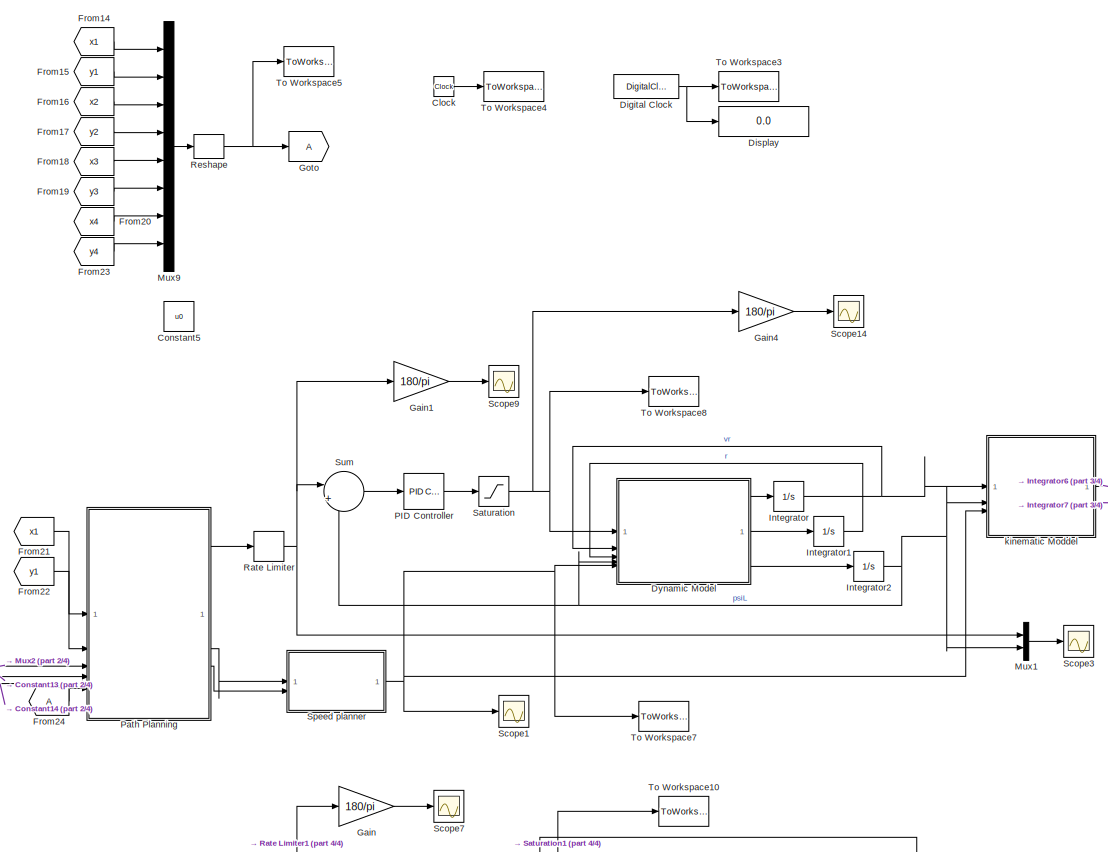
[diagram: root canvas - part 1/4, top center region]
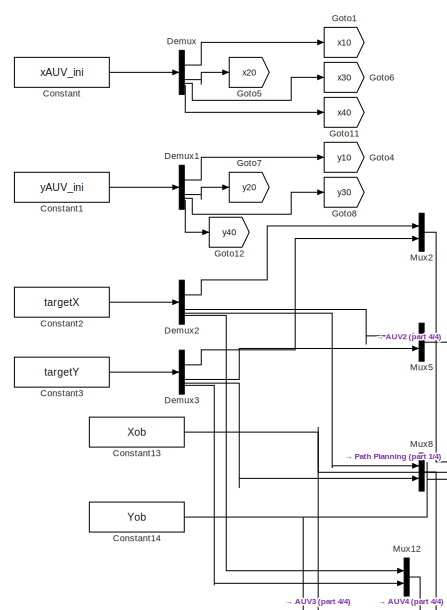
[diagram: root canvas - part 2/4, top left region]
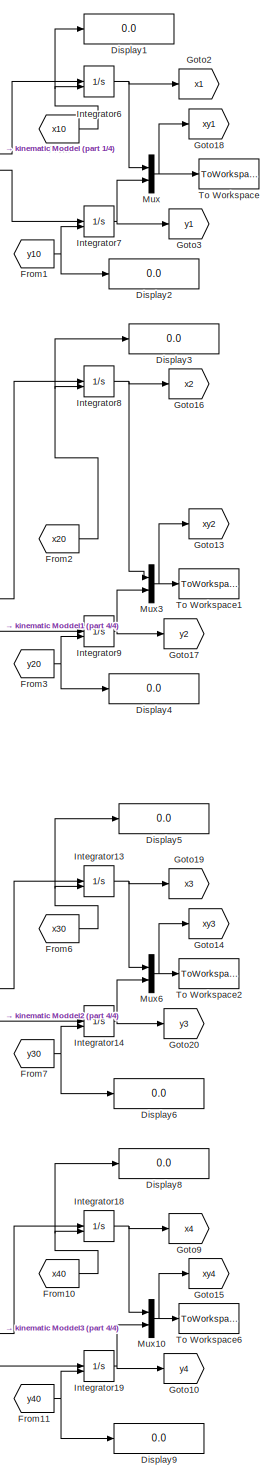
[diagram: root canvas - part 3/4, right side, full height]
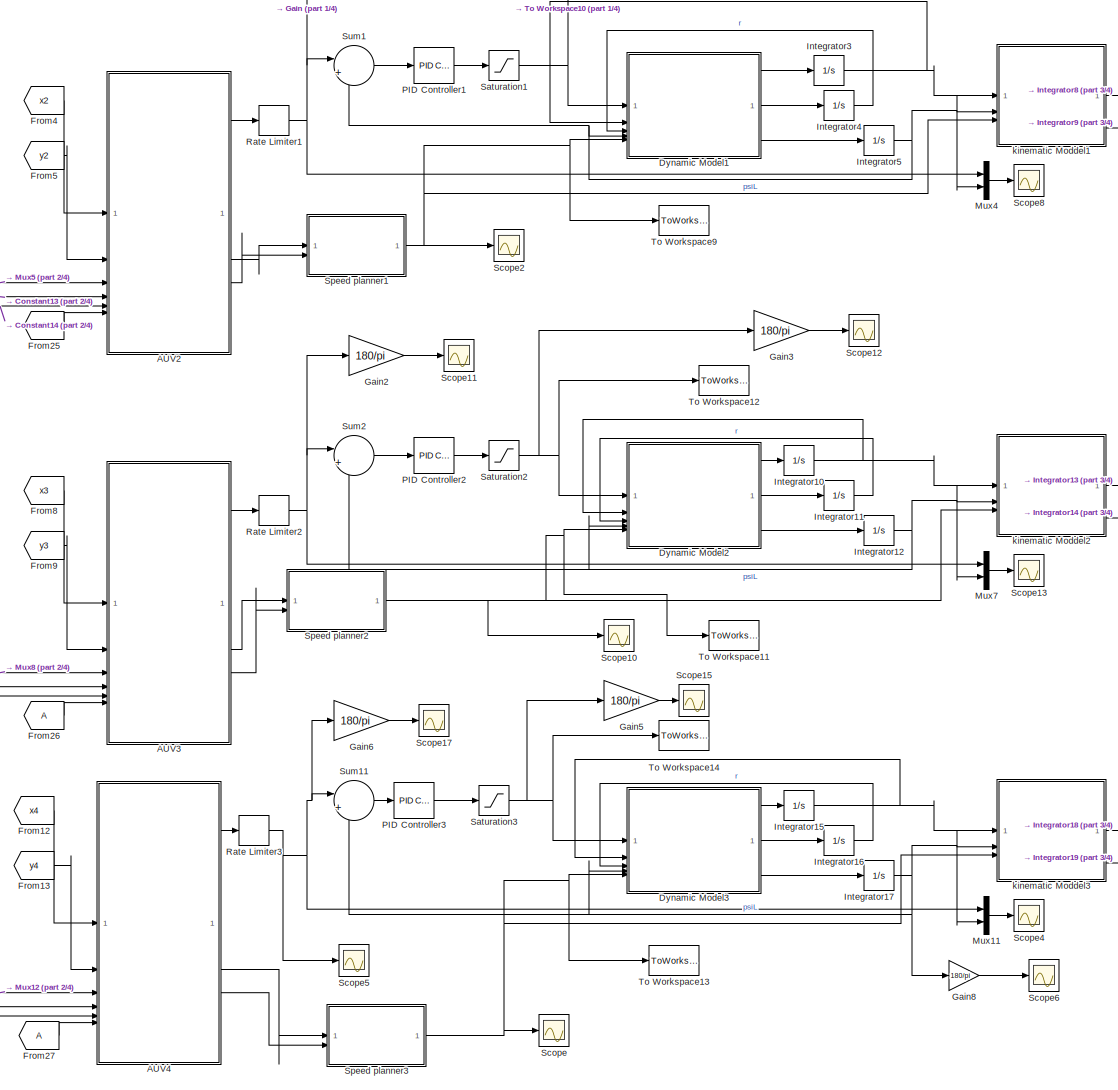
[diagram: root canvas - part 4/4, bottom center region]
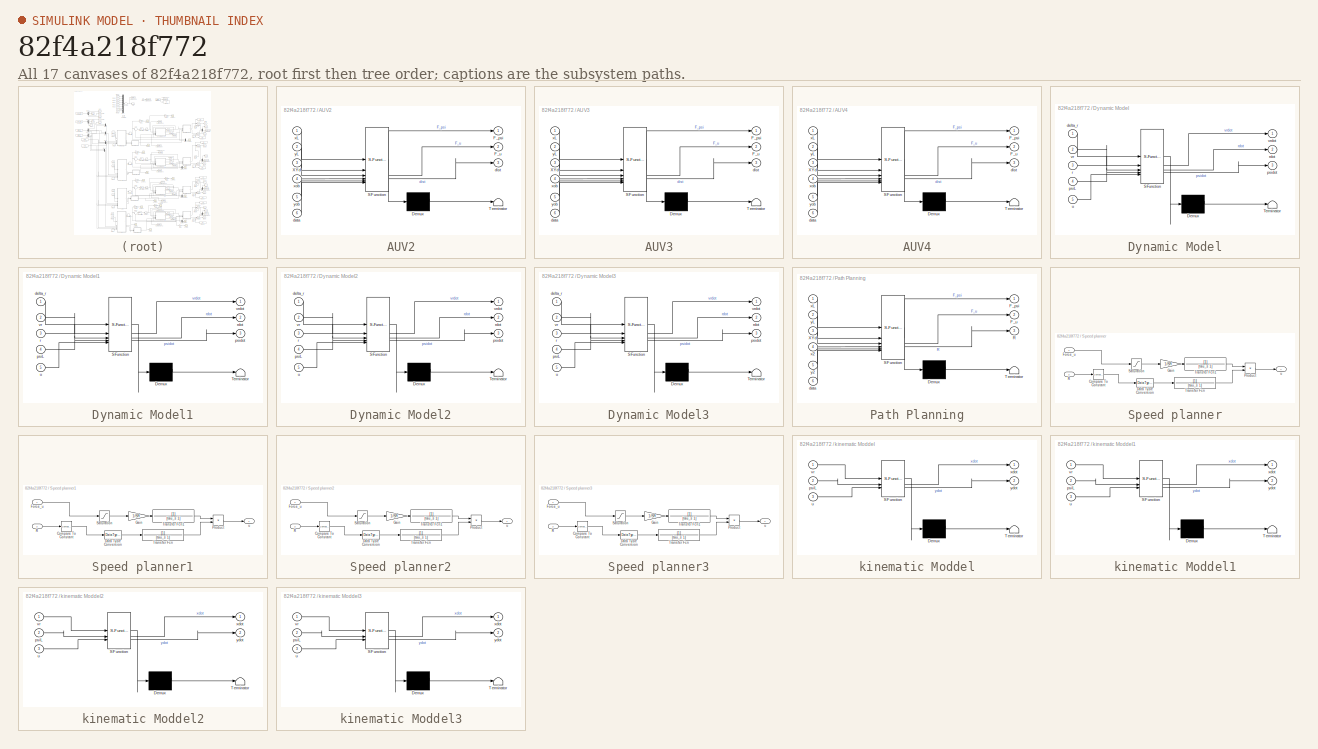
[diagram: thumbnail index - all 17 canvases of the model, root first then tree order]
MODEL slx_82f4a218f772
KIND model
CONFIG AbsTol = auto
CONFIG EnableMultiTasking = off
CONFIG FixedStep = dt
CONFIG MaxStep = auto
CONFIG MinStep = auto
CONFIG RelTol = 1e-3
CONFIG SampleTimeConstraint = Unconstrained
CONFIG SolverName = FixedStepAuto
CONFIG StartTime = 0.0
CONFIG StopTime = Sim_time
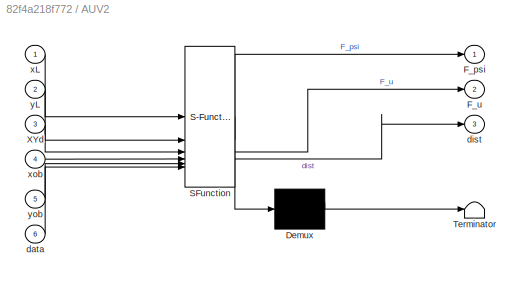
BLOCK [SubSystem] AUV2
  ErrorFcn = Stateflow.Translate.translate
  PermitHierarchicalResolution = ExplicitOnly
  SFBlockType = MATLAB Function
  TreatAsAtomicUnit = on
BLOCK [Demux] AUV2/ Demux 
  Outputs = 1
BLOCK [S-Function] AUV2/ SFunction 
  EnableBusSupport = on
  FunctionName = sf_sfun
  PortCounts = [6 4]
  SFcnIsStateOwnerBlock = off
  SFunctionDeploymentMode = off
  Tag = Stateflow S-Function 3
BLOCK [Terminator] AUV2/ Terminator 
BLOCK [Outport] AUV2/F_psi
  VectorParamsAs1DForOutWhenUnconnected = off
BLOCK [Outport] AUV2/F_u
  Port = 2
BLOCK [Inport] AUV2/XYd
  Port = 3
BLOCK [Inport] AUV2/data
  Port = 6
BLOCK [Outport] AUV2/dist
  Port = 3
BLOCK [Inport] AUV2/xL
BLOCK [Inport] AUV2/xob
  Port = 4
BLOCK [Inport] AUV2/yL
  Port = 2
BLOCK [Inport] AUV2/yob
  Port = 5
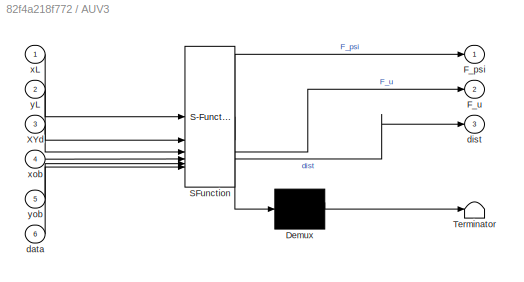
BLOCK [SubSystem] AUV3
  ErrorFcn = Stateflow.Translate.translate
  PermitHierarchicalResolution = ExplicitOnly
  SFBlockType = MATLAB Function
  TreatAsAtomicUnit = on
BLOCK [Demux] AUV3/ Demux 
  Outputs = 1
BLOCK [S-Function] AUV3/ SFunction 
  EnableBusSupport = on
  FunctionName = sf_sfun
  PortCounts = [6 4]
  SFcnIsStateOwnerBlock = off
  SFunctionDeploymentMode = off
  Tag = Stateflow S-Function 5
BLOCK [Terminator] AUV3/ Terminator 
BLOCK [Outport] AUV3/F_psi
  VectorParamsAs1DForOutWhenUnconnected = off
BLOCK [Outport] AUV3/F_u
  Port = 2
BLOCK [Inport] AUV3/XYd
  Port = 3
BLOCK [Inport] AUV3/data
  Port = 6
BLOCK [Outport] AUV3/dist
  Port = 3
BLOCK [Inport] AUV3/xL
BLOCK [Inport] AUV3/xob
  Port = 4
BLOCK [Inport] AUV3/yL
  Port = 2
BLOCK [Inport] AUV3/yob
  Port = 5
BLOCK [SubSystem] AUV4
  ErrorFcn = Stateflow.Translate.translate
  PermitHierarchicalResolution = ExplicitOnly
  SFBlockType = MATLAB Function
  TreatAsAtomicUnit = on
BLOCK [Demux] AUV4/ Demux 
  Outputs = 1
BLOCK [S-Function] AUV4/ SFunction 
  EnableBusSupport = on
  FunctionName = sf_sfun
  PortCounts = [6 4]
  SFcnIsStateOwnerBlock = off
  SFunctionDeploymentMode = off
  Tag = Stateflow S-Function 8
BLOCK [Terminator] AUV4/ Terminator 
BLOCK [Outport] AUV4/F_psi
  VectorParamsAs1DForOutWhenUnconnected = off
BLOCK [Outport] AUV4/F_u
  Port = 2
BLOCK [Inport] AUV4/XYd
  Port = 3
BLOCK [Inport] AUV4/data
  Port = 6
BLOCK [Outport] AUV4/dist
  Port = 3
BLOCK [Inport] AUV4/xL
BLOCK [Inport] AUV4/xob
  Port = 4
BLOCK [Inport] AUV4/yL
  Port = 2
BLOCK [Inport] AUV4/yob
  Port = 5
BLOCK [Clock] Clock
BLOCK [Constant] Constant
  Value = xAUV_ini
BLOCK [Constant] Constant1
  Value = yAUV_ini
BLOCK [Constant] Constant13
  Value = Xob
BLOCK [Constant] Constant14
  Value = Yob
BLOCK [Constant] Constant2
  Value = targetX
BLOCK [Constant] Constant3
  Value = targetY
BLOCK [Constant] Constant5
  Value = u0
BLOCK [Demux] Demux
BLOCK [Demux] Demux1
BLOCK [Demux] Demux2
BLOCK [Demux] Demux3
BLOCK [DigitalClock] Digital Clock
BLOCK [Display] Display
  Decimation = 1
BLOCK [Display] Display1
  Decimation = 1
BLOCK [Display] Display2
  Decimation = 1
BLOCK [Display] Display3
  Decimation = 1
BLOCK [Display] Display4
  Decimation = 1
BLOCK [Display] Display5
  Decimation = 1
BLOCK [Display] Display6
  Decimation = 1
BLOCK [Display] Display8
  Decimation = 1
BLOCK [Display] Display9
  Decimation = 1
BLOCK [SubSystem] Dynamic Model
  ErrorFcn = Stateflow.Translate.translate
  PermitHierarchicalResolution = ExplicitOnly
  SFBlockType = MATLAB Function
  TreatAsAtomicUnit = on
BLOCK [Demux] Dynamic Model/ Demux 
  Outputs = 1
BLOCK [S-Function] Dynamic Model/ SFunction 
  EnableBusSupport = on
  FunctionName = sf_sfun
  PortCounts = [5 4]
  SFcnIsStateOwnerBlock = off
  SFunctionDeploymentMode = off
  Tag = Stateflow S-Function 2
BLOCK [Terminator] Dynamic Model/ Terminator 
BLOCK [Inport] Dynamic Model/delta_r
BLOCK [Inport] Dynamic Model/psiL
  Port = 4
BLOCK [Outport] Dynamic Model/psidot
  Port = 3
  VectorParamsAs1DForOutWhenUnconnected = off
BLOCK [Inport] Dynamic Model/r
  Port = 3
BLOCK [Outport] Dynamic Model/rdot
  Port = 2
  VectorParamsAs1DForOutWhenUnconnected = off
BLOCK [Inport] Dynamic Model/u
  Port = 5
BLOCK [Inport] Dynamic Model/vr
  Port = 2
BLOCK [Outport] Dynamic Model/vrdot
  VectorParamsAs1DForOutWhenUnconnected = off
BLOCK [SubSystem] Dynamic Model1
  ErrorFcn = Stateflow.Translate.translate
  PermitHierarchicalResolution = ExplicitOnly
  SFBlockType = MATLAB Function
  TreatAsAtomicUnit = on
BLOCK [Demux] Dynamic Model1/ Demux 
  Outputs = 1
BLOCK [S-Function] Dynamic Model1/ SFunction 
  EnableBusSupport = on
  FunctionName = sf_sfun
  PortCounts = [5 4]
  SFcnIsStateOwnerBlock = off
  SFunctionDeploymentMode = off
  Tag = Stateflow S-Function 4
BLOCK [Terminator] Dynamic Model1/ Terminator 
BLOCK [Inport] Dynamic Model1/delta_r
BLOCK [Inport] Dynamic Model1/psiL
  Port = 4
BLOCK [Outport] Dynamic Model1/psidot
  Port = 3
  VectorParamsAs1DForOutWhenUnconnected = off
BLOCK [Inport] Dynamic Model1/r
  Port = 3
BLOCK [Outport] Dynamic Model1/rdot
  Port = 2
  VectorParamsAs1DForOutWhenUnconnected = off
BLOCK [Inport] Dynamic Model1/u
  Port = 5
BLOCK [Inport] Dynamic Model1/vr
  Port = 2
BLOCK [Outport] Dynamic Model1/vrdot
  VectorParamsAs1DForOutWhenUnconnected = off
BLOCK [SubSystem] Dynamic Model2
  ErrorFcn = Stateflow.Translate.translate
  PermitHierarchicalResolution = ExplicitOnly
  SFBlockType = MATLAB Function
  TreatAsAtomicUnit = on
BLOCK [Demux] Dynamic Model2/ Demux 
  Outputs = 1
BLOCK [S-Function] Dynamic Model2/ SFunction 
  EnableBusSupport = on
  FunctionName = sf_sfun
  PortCounts = [5 4]
  SFcnIsStateOwnerBlock = off
  SFunctionDeploymentMode = off
  Tag = Stateflow S-Function 7
BLOCK [Terminator] Dynamic Model2/ Terminator 
BLOCK [Inport] Dynamic Model2/delta_r
BLOCK [Inport] Dynamic Model2/psiL
  Port = 4
BLOCK [Outport] Dynamic Model2/psidot
  Port = 3
  VectorParamsAs1DForOutWhenUnconnected = off
BLOCK [Inport] Dynamic Model2/r
  Port = 3
BLOCK [Outport] Dynamic Model2/rdot
  Port = 2
  VectorParamsAs1DForOutWhenUnconnected = off
BLOCK [Inport] Dynamic Model2/u
  Port = 5
BLOCK [Inport] Dynamic Model2/vr
  Port = 2
BLOCK [Outport] Dynamic Model2/vrdot
  VectorParamsAs1DForOutWhenUnconnected = off
BLOCK [SubSystem] Dynamic Model3
  ErrorFcn = Stateflow.Translate.translate
  PermitHierarchicalResolution = ExplicitOnly
  SFBlockType = MATLAB Function
  TreatAsAtomicUnit = on
BLOCK [Demux] Dynamic Model3/ Demux 
  Outputs = 1
BLOCK [S-Function] Dynamic Model3/ SFunction 
  EnableBusSupport = on
  FunctionName = sf_sfun
  PortCounts = [5 4]
  SFcnIsStateOwnerBlock = off
  SFunctionDeploymentMode = off
  Tag = Stateflow S-Function 12
BLOCK [Terminator] Dynamic Model3/ Terminator 
BLOCK [Inport] Dynamic Model3/delta_r
BLOCK [Inport] Dynamic Model3/psiL
  Port = 4
BLOCK [Outport] Dynamic Model3/psidot
  Port = 3
  VectorParamsAs1DForOutWhenUnconnected = off
BLOCK [Inport] Dynamic Model3/r
  Port = 3
BLOCK [Outport] Dynamic Model3/rdot
  Port = 2
  VectorParamsAs1DForOutWhenUnconnected = off
BLOCK [Inport] Dynamic Model3/u
  Port = 5
BLOCK [Inport] Dynamic Model3/vr
  Port = 2
BLOCK [Outport] Dynamic Model3/vrdot
  VectorParamsAs1DForOutWhenUnconnected = off
BLOCK [From] From
  GotoTag = x10
BLOCK [From] From1
  GotoTag = y10
BLOCK [From] From10
  GotoTag = x40
BLOCK [From] From11
  GotoTag = y40
BLOCK [From] From12
  GotoTag = x4
  TagVisibility = global
BLOCK [From] From13
  GotoTag = y4
  TagVisibility = global
BLOCK [From] From14
  GotoTag = x1
  TagVisibility = global
BLOCK [From] From15
  GotoTag = y1
  TagVisibility = global
BLOCK [From] From16
  GotoTag = x2
  TagVisibility = global
BLOCK [From] From17
  GotoTag = y2
  TagVisibility = global
BLOCK [From] From18
  GotoTag = x3
  TagVisibility = global
BLOCK [From] From19
  GotoTag = y3
  TagVisibility = global
BLOCK [From] From2
  GotoTag = x20
BLOCK [From] From20
  GotoTag = x4
  TagVisibility = global
BLOCK [From] From21
  GotoTag = x1
  TagVisibility = global
BLOCK [From] From22
  GotoTag = y1
  TagVisibility = global
BLOCK [From] From23
  GotoTag = y4
  TagVisibility = global
BLOCK [From] From24
BLOCK [From] From25
BLOCK [From] From26
BLOCK [From] From27
BLOCK [From] From3
  GotoTag = y20
BLOCK [From] From4
  GotoTag = x2
  TagVisibility = global
BLOCK [From] From5
  GotoTag = y2
  TagVisibility = global
BLOCK [From] From6
  GotoTag = x30
BLOCK [From] From7
  GotoTag = y30
BLOCK [From] From8
  GotoTag = x3
  TagVisibility = global
BLOCK [From] From9
  GotoTag = y3
  TagVisibility = global
BLOCK [Gain] Gain
  Gain = 180/pi
BLOCK [Gain] Gain1
  Gain = 180/pi
BLOCK [Gain] Gain2
  Gain = 180/pi
BLOCK [Gain] Gain3
  Gain = 180/pi
BLOCK [Gain] Gain4
  Gain = 180/pi
BLOCK [Gain] Gain5
  Gain = 180/pi
BLOCK [Gain] Gain6
  Gain = 180/pi
BLOCK [Gain] Gain8
  Gain = 180/pi
BLOCK [Goto] Goto
BLOCK [Goto] Goto1
  GotoTag = x10
BLOCK [Goto] Goto10
  GotoTag = y4
  TagVisibility = global
BLOCK [Goto] Goto11
  GotoTag = x40
BLOCK [Goto] Goto12
  GotoTag = y40
BLOCK [Goto] Goto13
  GotoTag = xy2
  TagVisibility = global
BLOCK [Goto] Goto14
  GotoTag = xy3
  TagVisibility = global
BLOCK [Goto] Goto15
  GotoTag = xy4
  TagVisibility = global
BLOCK [Goto] Goto16
  GotoTag = x2
  TagVisibility = global
BLOCK [Goto] Goto17
  GotoTag = y2
  TagVisibility = global
BLOCK [Goto] Goto18
  GotoTag = xy1
  TagVisibility = global
BLOCK [Goto] Goto19
  GotoTag = x3
  TagVisibility = global
BLOCK [Goto] Goto2
  GotoTag = x1
  TagVisibility = global
BLOCK [Goto] Goto20
  GotoTag = y3
  TagVisibility = global
BLOCK [Goto] Goto3
  GotoTag = y1
  TagVisibility = global
BLOCK [Goto] Goto4
  GotoTag = y10
BLOCK [Goto] Goto5
  GotoTag = x20
BLOCK [Goto] Goto6
  GotoTag = x30
BLOCK [Goto] Goto7
  GotoTag = y20
BLOCK [Goto] Goto8
  GotoTag = y30
BLOCK [Goto] Goto9
  GotoTag = x4
  TagVisibility = global
BLOCK [Integrator] Integrator
BLOCK [Integrator] Integrator1
BLOCK [Integrator] Integrator10
BLOCK [Integrator] Integrator11
BLOCK [Integrator] Integrator12
  InitialCondition = pi/6
BLOCK [Integrator] Integrator13
  InitialCondition = 6
  InitialConditionSource = external
BLOCK [Integrator] Integrator14
  InitialCondition = 4
  InitialConditionSource = external
BLOCK [Integrator] Integrator15
BLOCK [Integrator] Integrator16
BLOCK [Integrator] Integrator17
  InitialCondition = pi/6
BLOCK [Integrator] Integrator18
  InitialCondition = 6
  InitialConditionSource = external
BLOCK [Integrator] Integrator19
  InitialCondition = 4
  InitialConditionSource = external
BLOCK [Integrator] Integrator2
  InitialCondition = pi/6
BLOCK [Integrator] Integrator3
BLOCK [Integrator] Integrator4
BLOCK [Integrator] Integrator5
  InitialCondition = pi/6
BLOCK [Integrator] Integrator6
  InitialCondition = 6
  InitialConditionSource = external
BLOCK [Integrator] Integrator7
  InitialCondition = 4
  InitialConditionSource = external
BLOCK [Integrator] Integrator8
  InitialCondition = 6
  InitialConditionSource = external
BLOCK [Integrator] Integrator9
  InitialCondition = 4
  InitialConditionSource = external
BLOCK [Mux] Mux
  DisplayOption = bar
  Inputs = 2
BLOCK [Mux] Mux1
  DisplayOption = bar
  Inputs = 2
BLOCK [Mux] Mux10
  DisplayOption = bar
  Inputs = 2
BLOCK [Mux] Mux11
  DisplayOption = bar
  Inputs = 2
BLOCK [Mux] Mux12
  DisplayOption = bar
  Inputs = 2
BLOCK [Mux] Mux2
  DisplayOption = bar
  Inputs = 2
BLOCK [Mux] Mux3
  DisplayOption = bar
  Inputs = 2
BLOCK [Mux] Mux4
  DisplayOption = bar
  Inputs = 2
BLOCK [Mux] Mux5
  DisplayOption = bar
  Inputs = 2
BLOCK [Mux] Mux6
  DisplayOption = bar
  Inputs = 2
BLOCK [Mux] Mux7
  DisplayOption = bar
  Inputs = 2
BLOCK [Mux] Mux8
  DisplayOption = bar
  Inputs = 2
BLOCK [Mux] Mux9
  DisplayOption = bar
  Inputs = 8
BLOCK [Reference] PID Controller  REF=slpidlib/PID Controller
  SourceBlock = slpidlib/PID Controller
  SourceType = PID 1dof
BLOCK [Reference] PID Controller1  REF=slpidlib/PID Controller
  SourceBlock = slpidlib/PID Controller
  SourceType = PID 1dof
BLOCK [Reference] PID Controller2  REF=slpidlib/PID Controller
  SourceBlock = slpidlib/PID Controller
  SourceType = PID 1dof
BLOCK [Reference] PID Controller3  REF=slpidlib/PID Controller
  SourceBlock = slpidlib/PID Controller
  SourceType = PID 1dof
BLOCK [SubSystem] Path Planning
  ErrorFcn = Stateflow.Translate.translate
  PermitHierarchicalResolution = ExplicitOnly
  SFBlockType = MATLAB Function
  TreatAsAtomicUnit = on
BLOCK [Demux] Path Planning/ Demux 
  Outputs = 1
BLOCK [S-Function] Path Planning/ SFunction 
  EnableBusSupport = on
  FunctionName = sf_sfun
  PortCounts = [6 4]
  SFcnIsStateOwnerBlock = off
  SFunctionDeploymentMode = off
  Tag = Stateflow S-Function 9
BLOCK [Terminator] Path Planning/ Terminator 
BLOCK [Outport] Path Planning/F_psi
  VectorParamsAs1DForOutWhenUnconnected = off
BLOCK [Outport] Path Planning/F_u
  Port = 2
BLOCK [Outport] Path Planning/R
  Port = 3
BLOCK [Inport] Path Planning/XYd
  Port = 3
BLOCK [Inport] Path Planning/data
  Port = 6
BLOCK [Inport] Path Planning/x2
  Port = 4
BLOCK [Inport] Path Planning/xL
BLOCK [Inport] Path Planning/y2
  Port = 5
BLOCK [Inport] Path Planning/yL
  Port = 2
BLOCK [RateLimiter] Rate Limiter
  FallingSlewLimit = -M_psi_r
  RisingSlewLimit = M_psi_r
  SampleTimeMode = inherited
BLOCK [RateLimiter] Rate Limiter1
  FallingSlewLimit = -M_psi_r
  RisingSlewLimit = M_psi_r
  SampleTimeMode = inherited
BLOCK [RateLimiter] Rate Limiter2
  FallingSlewLimit = -M_psi_r
  RisingSlewLimit = M_psi_r
  SampleTimeMode = inherited
BLOCK [RateLimiter] Rate Limiter3
  FallingSlewLimit = -M_psi_r
  RisingSlewLimit = M_psi_r
  SampleTimeMode = inherited
BLOCK [Reshape] Reshape
  OutputDimensionality = Customize
  OutputDimensions = [8,1]
BLOCK [Saturate] Saturation
  LowerLimit = -delta_r_max
  UpperLimit = delta_r_max
BLOCK [Saturate] Saturation1
  LowerLimit = -delta_r_max
  UpperLimit = delta_r_max
BLOCK [Saturate] Saturation2
  LowerLimit = -delta_r_max
  UpperLimit = delta_r_max
BLOCK [Saturate] Saturation3
  LowerLimit = -delta_r_max
  UpperLimit = delta_r_max
BLOCK [Scope] Scope
  Floating = off
  NumInputPorts = 1
  ScopeSpecificationString = Simulink.scopes.TimeScopeBlockCfg('CurrentConfiguration', extmgr.ConfigurationSet(extmgr.Configuration('Core','General UI',true),extmgr.Configuration('Core','Source UI',true),extmgr.Configuration('Sources','WiredSimulink',true,'DataLoggingVariableName','ScopeData1'),extmgr.Configuration('Visuals','Time Domain',true,'SerializedDisplays',{struct('MinYLimReal','-0.1875','MaxYLimReal','1.6875','YLabel...<+1367ch>
BLOCK [Scope] Scope1
  Floating = off
  NumInputPorts = 1
  ScopeSpecificationString = Simulink.scopes.TimeScopeBlockCfg('CurrentConfiguration', extmgr.ConfigurationSet(extmgr.Configuration('Core','General UI',true),extmgr.Configuration('Core','Source UI',true),extmgr.Configuration('Sources','WiredSimulink',true,'DataLoggingVariableName','ScopeData1'),extmgr.Configuration('Visuals','Time Domain',true,'SerializedDisplays',{struct('MinYLimReal','-0.1875','MaxYLimReal','1.5156','YLabel...<+1416ch>
BLOCK [Scope] Scope10
  Floating = off
  NumInputPorts = 1
  ScopeSpecificationString = Simulink.scopes.TimeScopeBlockCfg('CurrentConfiguration', extmgr.ConfigurationSet(extmgr.Configuration('Core','General UI',true),extmgr.Configuration('Core','Source UI',true),extmgr.Configuration('Sources','WiredSimulink',true,'DataLoggingVariableName','ScopeData4'),extmgr.Configuration('Visuals','Time Domain',true,'SerializedDisplays',{struct('MinYLimReal','-0.1875','MaxYLimReal','1.6875','YLabel...<+1400ch>
BLOCK [Scope] Scope11
  Floating = off
  NumInputPorts = 1
  ScopeSpecificationString = Simulink.scopes.TimeScopeBlockCfg('CurrentConfiguration', extmgr.ConfigurationSet(extmgr.Configuration('Core','General UI',true),extmgr.Configuration('Core','Source UI',true),extmgr.Configuration('Sources','WiredSimulink',true,'DataLoggingVariableName','ScopeData5'),extmgr.Configuration('Visuals','Time Domain',true,'SerializedDisplays',{struct('MinYLimReal','-35.1566','MaxYLimReal','170.45912','YL...<+1403ch>
BLOCK [Scope] Scope12
  Floating = off
  NumInputPorts = 1
  ScopeSpecificationString = Simulink.scopes.TimeScopeBlockCfg('CurrentConfiguration', extmgr.ConfigurationSet(extmgr.Configuration('Core','General UI',true),extmgr.Configuration('Core','Source UI',true),extmgr.Configuration('Sources','WiredSimulink',true,'DataLoggingVariableName','ScopeData6'),extmgr.Configuration('Visuals','Time Domain',true,'SerializedDisplays',{struct('MinYLimReal','-65.2852','MaxYLimReal','42.84939','YLa...<+1414ch>
BLOCK [Scope] Scope13
  Floating = off
  NumInputPorts = 1
  ScopeSpecificationString = Simulink.scopes.TimeScopeBlockCfg('CurrentConfiguration', extmgr.ConfigurationSet(extmgr.Configuration('Core','General UI',true),extmgr.Configuration('Core','Source UI',true),extmgr.Configuration('Sources','WiredSimulink',true,'DataLoggingVariableName','ScopeData9'),extmgr.Configuration('Visuals','Time Domain',true,'SerializedDisplays',{struct('MinYLimReal','0.04332','MaxYLimReal','2.34776','YLabe...<+1382ch>
BLOCK [Scope] Scope14
  Floating = off
  NumInputPorts = 1
  ScopeSpecificationString = Simulink.scopes.TimeScopeBlockCfg('CurrentConfiguration', extmgr.ConfigurationSet(extmgr.Configuration('Core','General UI',true),extmgr.Configuration('Core','Source UI',true),extmgr.Configuration('Sources','WiredSimulink',true,'DataLoggingVariableName','ScopeData7'),extmgr.Configuration('Visuals','Time Domain',true,'SerializedDisplays',{struct('MinYLimReal','-37.5','MaxYLimReal','37.5','YLabelReal...<+1394ch>
BLOCK [Scope] Scope15
  Floating = off
  NumInputPorts = 1
  ScopeSpecificationString = Simulink.scopes.TimeScopeBlockCfg('CurrentConfiguration', extmgr.ConfigurationSet(extmgr.Configuration('Core','General UI',true),extmgr.Configuration('Core','Source UI',true),extmgr.Configuration('Sources','WiredSimulink',true,'DataLoggingVariableName','ScopeData8'),extmgr.Configuration('Visuals','Time Domain',true,'SerializedDisplays',{struct('MinYLimReal','-65.2852','MaxYLimReal','42.84939','YLa...<+1414ch>
BLOCK [Scope] Scope17
  Floating = off
  NumInputPorts = 1
  ScopeSpecificationString = Simulink.scopes.TimeScopeBlockCfg('CurrentConfiguration', extmgr.ConfigurationSet(extmgr.Configuration('Core','General UI',true),extmgr.Configuration('Core','Source UI',true),extmgr.Configuration('Sources','WiredSimulink',true,'DataLoggingVariableName','ScopeData10'),extmgr.Configuration('Visuals','Time Domain',true,'SerializedDisplays',{struct('MinYLimReal','-129.56045','MaxYLimReal','144.88955',...<+1427ch>
BLOCK [Scope] Scope2
  Floating = off
  NumInputPorts = 1
  ScopeSpecificationString = Simulink.scopes.TimeScopeBlockCfg('CurrentConfiguration', extmgr.ConfigurationSet(extmgr.Configuration('Core','General UI',true),extmgr.Configuration('Core','Source UI',true),extmgr.Configuration('Sources','WiredSimulink',true,'DataLoggingVariableName','ScopeData1'),extmgr.Configuration('Visuals','Time Domain',true,'SerializedDisplays',{struct('MinYLimReal','-0.1875','MaxYLimReal','1.6875','YLabel...<+1367ch>
BLOCK [Scope] Scope3
  Floating = off
  NumInputPorts = 1
  ScopeSpecificationString = Simulink.scopes.TimeScopeBlockCfg('CurrentConfiguration', extmgr.ConfigurationSet(extmgr.Configuration('Core','General UI',true),extmgr.Configuration('Core','Source UI',true),extmgr.Configuration('Sources','WiredSimulink',true,'DataLoggingVariableName','ScopeData4'),extmgr.Configuration('Visuals','Time Domain',true,'SerializedDisplays',{struct('MinYLimReal','-1.8052','MaxYLimReal','3.98769','YLabe...<+1382ch>
BLOCK [Scope] Scope4
  Floating = off
  NumInputPorts = 1
  ScopeSpecificationString = Simulink.scopes.TimeScopeBlockCfg('CurrentConfiguration', extmgr.ConfigurationSet(extmgr.Configuration('Core','General UI',true),extmgr.Configuration('Core','Source UI',true),extmgr.Configuration('Sources','WiredSimulink',true,'DataLoggingVariableName','ScopeData3'),extmgr.Configuration('Visuals','Time Domain',true,'SerializedDisplays',{struct('MinYLimReal','0.04332','MaxYLimReal','2.34776','YLabe...<+1382ch>
BLOCK [Scope] Scope5
  Floating = off
  NumInputPorts = 1
  ScopeSpecificationString = Simulink.scopes.TimeScopeBlockCfg('CurrentConfiguration', extmgr.ConfigurationSet(extmgr.Configuration('Core','General UI',true),extmgr.Configuration('Core','Source UI',true),extmgr.Configuration('Sources','WiredSimulink',true,'DataLoggingVariableName','ScopeData2'),extmgr.Configuration('Visuals','Time Domain',true,'SerializedDisplays',{struct('MinYLimReal','-1.73624','MaxYLimReal','3.144','YLabel...<+1360ch>
BLOCK [Scope] Scope6
  Floating = off
  NumInputPorts = 1
  ScopeSpecificationString = Simulink.scopes.TimeScopeBlockCfg('CurrentConfiguration', extmgr.ConfigurationSet(extmgr.Configuration('Core','General UI',true),extmgr.Configuration('Core','Source UI',true),extmgr.Configuration('Sources','WiredSimulink',true,'DataLoggingVariableName','ScopeData3'),extmgr.Configuration('Visuals','Time Domain',true,'SerializedDisplays',{struct('MinYLimReal','-114.75405','MaxYLimReal','189.92566','...<+1378ch>
BLOCK [Scope] Scope7
  Floating = off
  NumInputPorts = 1
  ScopeSpecificationString = Simulink.scopes.TimeScopeBlockCfg('CurrentConfiguration', extmgr.ConfigurationSet(extmgr.Configuration('Core','General UI',true),extmgr.Configuration('Core','Source UI',true),extmgr.Configuration('Sources','WiredSimulink',true,'DataLoggingVariableName','ScopeData2'),extmgr.Configuration('Visuals','Time Domain',true,'SerializedDisplays',{struct('MinYLimReal','-22.86135','MaxYLimReal','83.71531','YL...<+1369ch>
BLOCK [Scope] Scope8
  Floating = off
  NumInputPorts = 1
  ScopeSpecificationString = Simulink.scopes.TimeScopeBlockCfg('CurrentConfiguration', extmgr.ConfigurationSet(extmgr.Configuration('Core','General UI',true),extmgr.Configuration('Core','Source UI',true),extmgr.Configuration('Sources','WiredSimulink',true,'DataLoggingVariableName','ScopeData4'),extmgr.Configuration('Visuals','Time Domain',true,'SerializedDisplays',{struct('MinYLimReal','0.04332','MaxYLimReal','2.34776','YLabe...<+1382ch>
BLOCK [Scope] Scope9
  Floating = off
  NumInputPorts = 1
  ScopeSpecificationString = Simulink.scopes.TimeScopeBlockCfg('CurrentConfiguration', extmgr.ConfigurationSet(extmgr.Configuration('Core','General UI',true),extmgr.Configuration('Core','Source UI',true),extmgr.Configuration('Sources','WiredSimulink',true,'DataLoggingVariableName','ScopeData3'),extmgr.Configuration('Visuals','Time Domain',true,'SerializedDisplays',{struct('MinYLimReal','-13.04342','MaxYLimReal','137.35054','Y...<+1422ch>
BLOCK [SubSystem] Speed planner
BLOCK [Reference] Speed planner/Compare To Constant  REF=simulink/Logic and Bit
Operations/Compare
To Constant
  SourceBlock = simulink/Logic and Bit\nOperations/Compare\nTo Constant
  SourceType = Compare To Constant
BLOCK [DataTypeConversion] Speed planner/Data Type Conversion
  OutDataTypeStr = double
  RndMeth = Floor
  SaturateOnIntegerOverflow = off
BLOCK [Inport] Speed planner/Force_u
BLOCK [Gain] Speed planner/Gain
  Gain = 1/SR
BLOCK [Product] Speed planner/Product
BLOCK [Inport] Speed planner/R
  Port = 2
BLOCK [Saturate] Speed planner/Saturation
  LowerLimit = MinF
  UpperLimit = MaxF
BLOCK [TransferFcn] Speed planner/Transfer Fcn
  Denominator = [tau_s 1]
BLOCK [TransferFcn] Speed planner/Transfer Fcn1
  Denominator = [tau_s 1]
BLOCK [Outport] Speed planner/u
BLOCK [SubSystem] Speed planner1
BLOCK [Reference] Speed planner1/Compare To Constant  REF=simulink/Logic and Bit
Operations/Compare
To Constant
  SourceBlock = simulink/Logic and Bit\nOperations/Compare\nTo Constant
  SourceType = Compare To Constant
BLOCK [DataTypeConversion] Speed planner1/Data Type Conversion
  OutDataTypeStr = double
  RndMeth = Floor
  SaturateOnIntegerOverflow = off
BLOCK [Inport] Speed planner1/Force_u
BLOCK [Gain] Speed planner1/Gain
  Gain = 1/SR
BLOCK [Product] Speed planner1/Product
BLOCK [Inport] Speed planner1/R
  Port = 2
BLOCK [Saturate] Speed planner1/Saturation
  LowerLimit = MinF
  UpperLimit = MaxF
BLOCK [TransferFcn] Speed planner1/Transfer Fcn
  Denominator = [tau_s 1]
BLOCK [TransferFcn] Speed planner1/Transfer Fcn1
  Denominator = [tau_s 1]
BLOCK [Outport] Speed planner1/u
BLOCK [SubSystem] Speed planner2
BLOCK [Reference] Speed planner2/Compare To Constant  REF=simulink/Logic and Bit
Operations/Compare
To Constant
  SourceBlock = simulink/Logic and Bit\nOperations/Compare\nTo Constant
  SourceType = Compare To Constant
BLOCK [DataTypeConversion] Speed planner2/Data Type Conversion
  OutDataTypeStr = double
  RndMeth = Floor
  SaturateOnIntegerOverflow = off
BLOCK [Inport] Speed planner2/Force_u
BLOCK [Gain] Speed planner2/Gain
  Gain = 1/SR
BLOCK [Product] Speed planner2/Product
BLOCK [Inport] Speed planner2/R
  Port = 2
BLOCK [Saturate] Speed planner2/Saturation
  LowerLimit = MinF
  UpperLimit = MaxF
BLOCK [TransferFcn] Speed planner2/Transfer Fcn
  Denominator = [tau_s 1]
BLOCK [TransferFcn] Speed planner2/Transfer Fcn1
  Denominator = [tau_s 1]
BLOCK [Outport] Speed planner2/u
BLOCK [SubSystem] Speed planner3
BLOCK [Reference] Speed planner3/Compare To Constant  REF=simulink/Logic and Bit
Operations/Compare
To Constant
  SourceBlock = simulink/Logic and Bit\nOperations/Compare\nTo Constant
  SourceType = Compare To Constant
BLOCK [DataTypeConversion] Speed planner3/Data Type Conversion
  OutDataTypeStr = double
  RndMeth = Floor
  SaturateOnIntegerOverflow = off
BLOCK [Inport] Speed planner3/Force_u
BLOCK [Gain] Speed planner3/Gain
  Gain = 1/SR
BLOCK [Product] Speed planner3/Product
BLOCK [Inport] Speed planner3/R
  Port = 2
BLOCK [Saturate] Speed planner3/Saturation
  LowerLimit = MinF
  UpperLimit = MaxF
BLOCK [TransferFcn] Speed planner3/Transfer Fcn
  Denominator = [tau_s 1]
BLOCK [TransferFcn] Speed planner3/Transfer Fcn1
  Denominator = [tau_s 1]
BLOCK [Outport] Speed planner3/u
BLOCK [Sum] Sum
  Inputs = |+-
BLOCK [Sum] Sum1
  Inputs = |+-
BLOCK [Sum] Sum11
  Inputs = |+-
BLOCK [Sum] Sum2
  Inputs = |+-
BLOCK [ToWorkspace] To Workspace
  FixptAsFi = on
  MaxDataPoints = inf
  SampleTime = -1
  SaveFormat = Structure With Time
  VariableName = AUV1
BLOCK [ToWorkspace] To Workspace1
  FixptAsFi = on
  MaxDataPoints = inf
  SampleTime = -1
  SaveFormat = Structure With Time
  VariableName = AUV2
BLOCK [ToWorkspace] To Workspace10
  FixptAsFi = on
  MaxDataPoints = inf
  SampleTime = -1
  VariableName = delta_r2
BLOCK [ToWorkspace] To Workspace11
  FixptAsFi = on
  MaxDataPoints = inf
  SampleTime = -1
  VariableName = u3
BLOCK [ToWorkspace] To Workspace12
  FixptAsFi = on
  MaxDataPoints = inf
  SampleTime = -1
  VariableName = delta_r3
BLOCK [ToWorkspace] To Workspace13
  FixptAsFi = on
  MaxDataPoints = inf
  SampleTime = -1
  VariableName = u4
BLOCK [ToWorkspace] To Workspace14
  FixptAsFi = on
  MaxDataPoints = inf
  SampleTime = -1
  VariableName = delta_r4
BLOCK [ToWorkspace] To Workspace2
  FixptAsFi = on
  MaxDataPoints = inf
  SampleTime = -1
  SaveFormat = Structure With Time
  VariableName = AUV3
BLOCK [ToWorkspace] To Workspace3
  FixptAsFi = on
  MaxDataPoints = inf
  SampleTime = -1
  VariableName = iteration
BLOCK [ToWorkspace] To Workspace4
  FixptAsFi = on
  MaxDataPoints = inf
  SampleTime = -1
  VariableName = t
BLOCK [ToWorkspace] To Workspace5
  FixptAsFi = on
  MaxDataPoints = inf
  SampleTime = -1
  VariableName = xys
BLOCK [ToWorkspace] To Workspace6
  FixptAsFi = on
  MaxDataPoints = inf
  SampleTime = -1
  SaveFormat = Structure With Time
  VariableName = AUV4
BLOCK [ToWorkspace] To Workspace7
  FixptAsFi = on
  MaxDataPoints = inf
  SampleTime = -1
  VariableName = u1
BLOCK [ToWorkspace] To Workspace8
  FixptAsFi = on
  MaxDataPoints = inf
  SampleTime = -1
  VariableName = delta_r1
BLOCK [ToWorkspace] To Workspace9
  FixptAsFi = on
  MaxDataPoints = inf
  SampleTime = -1
  VariableName = u2
BLOCK [SubSystem] kinematic Moddel
  ErrorFcn = Stateflow.Translate.translate
  PermitHierarchicalResolution = ExplicitOnly
  SFBlockType = MATLAB Function
  TreatAsAtomicUnit = on
BLOCK [Demux] kinematic Moddel/ Demux 
  Outputs = 1
BLOCK [S-Function] kinematic Moddel/ SFunction 
  EnableBusSupport = on
  FunctionName = sf_sfun
  PortCounts = [3 3]
  SFcnIsStateOwnerBlock = off
  SFunctionDeploymentMode = off
  Tag = Stateflow S-Function 1
BLOCK [Terminator] kinematic Moddel/ Terminator 
BLOCK [Inport] kinematic Moddel/psiL
  Port = 2
BLOCK [Inport] kinematic Moddel/u
  Port = 3
BLOCK [Inport] kinematic Moddel/vr
BLOCK [Outport] kinematic Moddel/xdot
  VectorParamsAs1DForOutWhenUnconnected = off
BLOCK [Outport] kinematic Moddel/ydot
  Port = 2
  VectorParamsAs1DForOutWhenUnconnected = off
BLOCK [SubSystem] kinematic Moddel1
  ErrorFcn = Stateflow.Translate.translate
  PermitHierarchicalResolution = ExplicitOnly
  SFBlockType = MATLAB Function
  TreatAsAtomicUnit = on
BLOCK [Demux] kinematic Moddel1/ Demux 
  Outputs = 1
BLOCK [S-Function] kinematic Moddel1/ SFunction 
  EnableBusSupport = on
  FunctionName = sf_sfun
  PortCounts = [3 3]
  SFcnIsStateOwnerBlock = off
  SFunctionDeploymentMode = off
  Tag = Stateflow S-Function 6
BLOCK [Terminator] kinematic Moddel1/ Terminator 
BLOCK [Inport] kinematic Moddel1/psiL
  Port = 2
BLOCK [Inport] kinematic Moddel1/u
  Port = 3
BLOCK [Inport] kinematic Moddel1/vr
BLOCK [Outport] kinematic Moddel1/xdot
  VectorParamsAs1DForOutWhenUnconnected = off
BLOCK [Outport] kinematic Moddel1/ydot
  Port = 2
  VectorParamsAs1DForOutWhenUnconnected = off
BLOCK [SubSystem] kinematic Moddel2
  ErrorFcn = Stateflow.Translate.translate
  PermitHierarchicalResolution = ExplicitOnly
  SFBlockType = MATLAB Function
  TreatAsAtomicUnit = on
BLOCK [Demux] kinematic Moddel2/ Demux 
  Outputs = 1
BLOCK [S-Function] kinematic Moddel2/ SFunction 
  EnableBusSupport = on
  FunctionName = sf_sfun
  PortCounts = [3 3]
  SFcnIsStateOwnerBlock = off
  SFunctionDeploymentMode = off
  Tag = Stateflow S-Function 10
BLOCK [Terminator] kinematic Moddel2/ Terminator 
BLOCK [Inport] kinematic Moddel2/psiL
  Port = 2
BLOCK [Inport] kinematic Moddel2/u
  Port = 3
BLOCK [Inport] kinematic Moddel2/vr
BLOCK [Outport] kinematic Moddel2/xdot
  VectorParamsAs1DForOutWhenUnconnected = off
BLOCK [Outport] kinematic Moddel2/ydot
  Port = 2
  VectorParamsAs1DForOutWhenUnconnected = off
BLOCK [SubSystem] kinematic Moddel3
  ErrorFcn = Stateflow.Translate.translate
  PermitHierarchicalResolution = ExplicitOnly
  SFBlockType = MATLAB Function
  TreatAsAtomicUnit = on
BLOCK [Demux] kinematic Moddel3/ Demux 
  Outputs = 1
BLOCK [S-Function] kinematic Moddel3/ SFunction 
  EnableBusSupport = on
  FunctionName = sf_sfun
  PortCounts = [3 3]
  SFcnIsStateOwnerBlock = off
  SFunctionDeploymentMode = off
  Tag = Stateflow S-Function 14
BLOCK [Terminator] kinematic Moddel3/ Terminator 
BLOCK [Inport] kinematic Moddel3/psiL
  Port = 2
BLOCK [Inport] kinematic Moddel3/u
  Port = 3
BLOCK [Inport] kinematic Moddel3/vr
BLOCK [Outport] kinematic Moddel3/xdot
  VectorParamsAs1DForOutWhenUnconnected = off
BLOCK [Outport] kinematic Moddel3/ydot
  Port = 2
  VectorParamsAs1DForOutWhenUnconnected = off
LINE AUV2:1 -> Rate Limiter1:1
LINE AUV2:2 -> Speed planner1:1
LINE AUV2:3 -> Speed planner1:2
LINE AUV3:1 -> Rate Limiter2:1
LINE AUV3:2 -> Speed planner2:1
LINE AUV3:3 -> Speed planner2:2
LINE AUV4:1 -> Rate Limiter3:1
LINE AUV4:2 -> Speed planner3:1
LINE AUV4:3 -> Speed planner3:2
LINE Clock:1 -> To Workspace4:1
NET Constant13:1 -> AUV2:4, AUV3:4, AUV4:4, Path Planning:4
NET Constant14:1 -> AUV2:5, AUV3:5, AUV4:5, Path Planning:5
LINE Constant1:1 -> Demux1:1
LINE Constant2:1 -> Demux2:1
LINE Constant3:1 -> Demux3:1
LINE Constant:1 -> Demux:1
LINE Demux1:1 -> Goto4:1
LINE Demux1:2 -> Goto7:1
LINE Demux1:3 -> Goto8:1
LINE Demux1:4 -> Goto12:1
LINE Demux2:1 -> Mux2:1
LINE Demux2:2 -> Mux5:1
LINE Demux2:3 -> Mux8:1
LINE Demux2:4 -> Mux12:1
LINE Demux3:1 -> Mux2:2
LINE Demux3:2 -> Mux5:2
LINE Demux3:3 -> Mux8:2
LINE Demux3:4 -> Mux12:2
LINE Demux:1 -> Goto1:1
LINE Demux:2 -> Goto5:1
LINE Demux:3 -> Goto6:1
LINE Demux:4 -> Goto11:1
NET Digital Clock:1 -> Display:1, To Workspace3:1
LINE Dynamic Model1:1 -> Integrator3:1
LINE Dynamic Model1:2 -> Integrator4:1
LINE Dynamic Model1:3 -> Integrator5:1
LINE Dynamic Model2:1 -> Integrator10:1
LINE Dynamic Model2:2 -> Integrator11:1
LINE Dynamic Model2:3 -> Integrator12:1
LINE Dynamic Model3:1 -> Integrator15:1
LINE Dynamic Model3:2 -> Integrator16:1
LINE Dynamic Model3:3 -> Integrator17:1
LINE Dynamic Model:1 -> Integrator:1
LINE Dynamic Model:2 -> Integrator1:1
LINE Dynamic Model:3 -> Integrator2:1
NET From10:1 -> Display8:1, Integrator18:2
NET From11:1 -> Display9:1, Integrator19:2
LINE From12:1 -> AUV4:1
LINE From13:1 -> AUV4:2
LINE From14:1 -> Mux9:1
LINE From15:1 -> Mux9:2
LINE From16:1 -> Mux9:3
LINE From17:1 -> Mux9:4
LINE From18:1 -> Mux9:5
LINE From19:1 -> Mux9:6
NET From1:1 -> Display2:1, Integrator7:2
LINE From20:1 -> Mux9:7
LINE From21:1 -> Path Planning:1
LINE From22:1 -> Path Planning:2
LINE From23:1 -> Mux9:8
LINE From24:1 -> Path Planning:6
LINE From25:1 -> AUV2:6
LINE From26:1 -> AUV3:6
LINE From27:1 -> AUV4:6
NET From2:1 -> Display3:1, Integrator8:2
NET From3:1 -> Display4:1, Integrator9:2
LINE From4:1 -> AUV2:1
LINE From5:1 -> AUV2:2
NET From6:1 -> Display5:1, Integrator13:2
NET From7:1 -> Display6:1, Integrator14:2
LINE From8:1 -> AUV3:1
LINE From9:1 -> AUV3:2
NET From:1 -> Display1:1, Integrator6:2
LINE Gain1:1 -> Scope9:1
LINE Gain2:1 -> Scope11:1
LINE Gain3:1 -> Scope12:1
LINE Gain4:1 -> Scope14:1
LINE Gain5:1 -> Scope15:1
LINE Gain6:1 -> Scope17:1
LINE Gain8:1 -> Scope6:1
LINE Gain:1 -> Scope7:1
NET Integrator10:1 -> Dynamic Model2:2, kinematic Moddel2:1
LINE Integrator11:1 -> Dynamic Model2:3
NET Integrator12:1 -> Dynamic Model2:4, Mux7:2, Sum2:2, kinematic Moddel2:2
NET Integrator13:1 -> Goto19:1, Mux6:1
NET Integrator14:1 -> Goto20:1, Mux6:2
NET Integrator15:1 -> Dynamic Model3:2, kinematic Moddel3:1
LINE Integrator16:1 -> Dynamic Model3:3
NET Integrator17:1 -> Dynamic Model3:4, Gain8:1, Mux11:2, Sum11:2, kinematic Moddel3:2
NET Integrator18:1 -> Goto9:1, Mux10:1
NET Integrator19:1 -> Goto10:1, Mux10:2
LINE Integrator1:1 -> Dynamic Model:3
NET Integrator2:1 -> Dynamic Model:4, Mux1:2, Sum:2, kinematic Moddel:2
NET Integrator3:1 -> Dynamic Model1:2, kinematic Moddel1:1
LINE Integrator4:1 -> Dynamic Model1:3
NET Integrator5:1 -> Dynamic Model1:4, Mux4:2, Sum1:2, kinematic Moddel1:2
NET Integrator6:1 -> Goto2:1, Mux:1
NET Integrator7:1 -> Goto3:1, Mux:2
NET Integrator8:1 -> Goto16:1, Mux3:1
NET Integrator9:1 -> Goto17:1, Mux3:2
NET Integrator:1 -> Dynamic Model:2, kinematic Moddel:1
NET Mux10:1 -> Goto15:1, To Workspace6:1
LINE Mux11:1 -> Scope4:1
LINE Mux12:1 -> AUV4:3
LINE Mux1:1 -> Scope3:1
LINE Mux2:1 -> Path Planning:3
NET Mux3:1 -> Goto13:1, To Workspace1:1
LINE Mux4:1 -> Scope8:1
LINE Mux5:1 -> AUV2:3
NET Mux6:1 -> Goto14:1, To Workspace2:1
LINE Mux7:1 -> Scope13:1
LINE Mux8:1 -> AUV3:3
LINE Mux9:1 -> Reshape:1
NET Mux:1 -> Goto18:1, To Workspace:1
LINE PID Controller1:1 -> Saturation1:1
LINE PID Controller2:1 -> Saturation2:1
LINE PID Controller3:1 -> Saturation3:1
LINE PID Controller:1 -> Saturation:1
LINE Path Planning:1 -> Rate Limiter:1
LINE Path Planning:2 -> Speed planner:1
LINE Path Planning:3 -> Speed planner:2
NET Rate Limiter1:1 -> Gain:1, Mux4:1, Sum1:1
NET Rate Limiter2:1 -> Gain2:1, Mux7:1, Sum2:1
NET Rate Limiter3:1 -> Gain6:1, Mux11:1, Scope5:1, Sum11:1
NET Rate Limiter:1 -> Gain1:1, Mux1:1, Sum:1
NET Reshape:1 -> Goto:1, To Workspace5:1
NET Saturation1:1 -> Dynamic Model1:1, To Workspace10:1
NET Saturation2:1 -> Dynamic Model2:1, Gain3:1, To Workspace12:1
NET Saturation3:1 -> Dynamic Model3:1, Gain5:1, To Workspace14:1
NET Saturation:1 -> Dynamic Model:1, Gain4:1, To Workspace8:1
LINE Speed planner/Compare To Constant:1 -> Speed planner/Data Type Conversion:1
LINE Speed planner/Data Type Conversion:1 -> Speed planner/Transfer Fcn:1
LINE Speed planner/Force_u:1 -> Speed planner/Saturation:1
LINE Speed planner/Gain:1 -> Speed planner/Transfer Fcn1:1
LINE Speed planner/Product:1 -> Speed planner/u:1
LINE Speed planner/R:1 -> Speed planner/Compare To Constant:1
LINE Speed planner/Saturation:1 -> Speed planner/Gain:1
LINE Speed planner/Transfer Fcn1:1 -> Speed planner/Product:1
LINE Speed planner/Transfer Fcn:1 -> Speed planner/Product:2
LINE Speed planner1/Compare To Constant:1 -> Speed planner1/Data Type Conversion:1
LINE Speed planner1/Data Type Conversion:1 -> Speed planner1/Transfer Fcn:1
LINE Speed planner1/Force_u:1 -> Speed planner1/Saturation:1
LINE Speed planner1/Gain:1 -> Speed planner1/Transfer Fcn1:1
LINE Speed planner1/Product:1 -> Speed planner1/u:1
LINE Speed planner1/R:1 -> Speed planner1/Compare To Constant:1
LINE Speed planner1/Saturation:1 -> Speed planner1/Gain:1
LINE Speed planner1/Transfer Fcn1:1 -> Speed planner1/Product:1
LINE Speed planner1/Transfer Fcn:1 -> Speed planner1/Product:2
NET Speed planner1:1 -> Dynamic Model1:5, Scope2:1, To Workspace9:1, kinematic Moddel1:3
LINE Speed planner2/Compare To Constant:1 -> Speed planner2/Data Type Conversion:1
LINE Speed planner2/Data Type Conversion:1 -> Speed planner2/Transfer Fcn:1
LINE Speed planner2/Force_u:1 -> Speed planner2/Saturation:1
LINE Speed planner2/Gain:1 -> Speed planner2/Transfer Fcn1:1
LINE Speed planner2/Product:1 -> Speed planner2/u:1
LINE Speed planner2/R:1 -> Speed planner2/Compare To Constant:1
LINE Speed planner2/Saturation:1 -> Speed planner2/Gain:1
LINE Speed planner2/Transfer Fcn1:1 -> Speed planner2/Product:1
LINE Speed planner2/Transfer Fcn:1 -> Speed planner2/Product:2
NET Speed planner2:1 -> Dynamic Model2:5, Scope10:1, To Workspace11:1, kinematic Moddel2:3
LINE Speed planner3/Compare To Constant:1 -> Speed planner3/Data Type Conversion:1
LINE Speed planner3/Data Type Conversion:1 -> Speed planner3/Transfer Fcn:1
LINE Speed planner3/Force_u:1 -> Speed planner3/Saturation:1
LINE Speed planner3/Gain:1 -> Speed planner3/Transfer Fcn1:1
LINE Speed planner3/Product:1 -> Speed planner3/u:1
LINE Speed planner3/R:1 -> Speed planner3/Compare To Constant:1
LINE Speed planner3/Saturation:1 -> Speed planner3/Gain:1
LINE Speed planner3/Transfer Fcn1:1 -> Speed planner3/Product:1
LINE Speed planner3/Transfer Fcn:1 -> Speed planner3/Product:2
NET Speed planner3:1 -> Dynamic Model3:5, Scope:1, To Workspace13:1, kinematic Moddel3:3
NET Speed planner:1 -> Dynamic Model:5, Scope1:1, To Workspace7:1, kinematic Moddel:3
LINE Sum11:1 -> PID Controller3:1
LINE Sum1:1 -> PID Controller1:1
LINE Sum2:1 -> PID Controller2:1
LINE Sum:1 -> PID Controller:1
LINE kinematic Moddel1:1 -> Integrator8:1
LINE kinematic Moddel1:2 -> Integrator9:1
LINE kinematic Moddel2:1 -> Integrator13:1
LINE kinematic Moddel2:2 -> Integrator14:1
LINE kinematic Moddel3:1 -> Integrator18:1
LINE kinematic Moddel3:2 -> Integrator19:1
LINE kinematic Moddel:1 -> Integrator6:1
LINE kinematic Moddel:2 -> Integrator7:1
note: NET lines group one-source signal fan-out (src -> all destinations, sorted); 1:1 wires keep LINE
CHART Dynamic Model2 states=1 transitions=1
  STATE_LABEL 'eML_blk_kernel()'
  STATE_LABEL 'SCRIPT:\nfunction [vrdot,rdot,psidot] = Leader_Model(delta_r,vr,r,psiL,u)\n% global U0\nU0 = u;\nm = 30.48;        %kg\nY_vrdot = -35.5;  %kg\nY_rdot = 1.93;    %kg/rad\nY_vr = -66.6;\nY_r = 2.2;        % kgm/s\nN_vrdot = 1.93;   % kgm\nN_rdot = -4.88;   % kgm2/rad\nN_vr = -4.47;     % kgm/s\nN_r = -6.87;      % kgm2/s\nN_delta = -34.6/3.5;\nY_delta = 50.6/3.5;\nIzz = 3.45;       % kgm2/rad \nx_state = [vr;r;psiL...<+943ch>'
CHART AUV4 states=1 transitions=1
  STATE_LABEL 'eML_blk_kernel()'
  STATE_LABEL 'SCRIPT:\nfunction [F_psi, F_u, dist] = improved_APF(xL, yL, XYd, xob, yob, data)\n% Improved APF for multiple AUVs, handling forces from 4 obstacles\n\n% Constants\np0 = 10; kp = 1; m = 80; R = 5; N = 2;\nnumAUVs = length(xL); % Number of AUVs (4)\n\n% Goal and robot positions\nXd = [XYd(1); XYd(2)];  % Goal position (same for all AUVs)\nXL = [xL; yL];  % Leader positions (one for each AUV)\n\nRat = norm(Xd -...<+1258ch>'
CHART Path Planning states=1 transitions=1
  STATE_LABEL 'eML_blk_kernel()'
  STATE_LABEL 'SCRIPT:\n%%%%%%%%%%%% Classic APF Sample, uncomment if needed %%%%%%%%%%%%%%%%%%%%%%\n%%%%%%%%%%%%%%%%%%%%%%%%%%%%%%%%%%%%%%%%%%%%%%%%%%%%%%%%%%%%%%%%%%%%%%%%%%%\n% function [F_psi, F_u, R] = improved_APF(xL, yL, XYd, x2, y2, data)\n%     % Parameters\n%     K_att = 1.0;              % Attractive gain (same)\n%     K_rep_static = 100;       % Repulsive gain for static obstacles\n%     K_rep_dyn = 100;   ...<+3521ch>'
CHART kinematic Moddel2 states=1 transitions=1
  STATE_LABEL 'eML_blk_kernel()'
  STATE_LABEL 'SCRIPT:\nfunction [xdot,ydot] = Position_leader(vr,psiL,u)\n% global U0\nU0 = u;\n% Ucx =0.2; Ucy =0.2; \nUcx =0.0; Ucy =0.0; \n% Ucx =0.2; Ucy =0.2; \n\n\n% x_dot = U0*cos(sa) - vr*sin(sa)+Ucx;\n% y_dot = U0*sin(sa) + vr*cos(sa)+Ucy;\nxdot  = U0*cos(psiL) - vr*sin(psiL)+ Ucx ;  %x_dot\nydot  = U0*sin(psiL) + vr*cos(psiL)+ Ucy ;  %y_dot\n\nend\n\n\n\n'  <repeated x4 — deduplicated; at blocks: kinematic Moddel2, kinematic Moddel3, kinematic Moddel, kinematic Moddel1>
CHART Dynamic Model3 states=1 transitions=1
  STATE_LABEL 'eML_blk_kernel()'
  STATE_LABEL 'SCRIPT:\nfunction [vrdot,rdot,psidot] = Leader_Model(delta_r,vr,r,psiL,u)\n% global U0\nU0 = u;\nm = 30.48;        %kg\nY_vrdot = -35.5;  %kg\nY_rdot = 1.93;    %kg/rad\nY_vr = -66.6;\nY_r = 2.2;        % kgm/s\nN_vrdot = 1.93;   % kgm\nN_rdot = -4.88;   % kgm2/rad\nN_vr = -4.47;     % kgm/s\nN_r = -6.87;      % kgm2/s\nN_delta = -34.6/3.5;\nY_delta = 50.6/3.5;\nIzz = 3.45;       % kgm2/rad \nx_state = [vr;r;psiL...<+943ch>'
CHART kinematic Moddel3 states=1 transitions=1
  STATE_LABEL 'eML_blk_kernel()'
CHART kinematic Moddel states=1 transitions=1
  STATE_LABEL 'eML_blk_kernel()'
CHART Dynamic Model states=1 transitions=1
  STATE_LABEL 'eML_blk_kernel()'
  STATE_LABEL 'SCRIPT:\nfunction [vrdot,rdot,psidot] = Leader_Model(delta_r,vr,r,psiL,u)\n% global U0\nU0 =u;\nm = 30.48;        %kg\nY_vrdot = -35.5;  %kg\nY_rdot = 1.93;    %kg/rad\nY_vr = -66.6;\nY_r = 2.2;        % kgm/s\nN_vrdot = 1.93;   % kgm\nN_rdot = -4.88;   % kgm2/rad\nN_vr = -4.47;     % kgm/s\nN_r = -6.87;      % kgm2/s\nN_delta = -34.6/3.5;\nY_delta = 50.6/3.5;\nIzz = 3.45;       % kgm2/rad \nx_state = [vr;r;psiL]...<+942ch>'
CHART AUV2 states=1 transitions=1
  STATE_LABEL 'eML_blk_kernel()'
  STATE_LABEL 'SCRIPT:\nfunction [F_psi, F_u, dist] = improved_APF(xL, yL, XYd, xob, yob, data)\n% Improved APF for multiple AUVs, handling forces from 4 obstacles\n\n% Constants\np0 = 15; kp = 1; m = 90; R = 3; N = 2;\nnumAUVs = length(xL); % Number of AUVs (4)\n\n% Goal and robot positions\nXd = [XYd(1); XYd(2)];  % Goal position (same for all AUVs)\nXL = [xL; yL];  % Leader positions (one for each AUV)\n\nRat = norm(Xd -...<+1258ch>'
CHART Dynamic Model1 states=1 transitions=1
  STATE_LABEL 'eML_blk_kernel()'
  STATE_LABEL 'SCRIPT:\nfunction [vrdot,rdot,psidot] = Leader_Model(delta_r,vr,r,psiL,u)\n% global U0\nU0 =u;\nm = 30.48;        %kg\nY_vrdot = -35.5;  %kg\nY_rdot = 1.93;    %kg/rad\nY_vr = -66.6;\nY_r = 2.2;        % kgm/s\nN_vrdot = 1.93;   % kgm\nN_rdot = -4.88;   % kgm2/rad\nN_vr = -4.47;     % kgm/s\nN_r = -6.87;      % kgm2/s\nN_delta = -34.6/3.5;\nY_delta = 50.6/3.5;\nIzz = 3.45;       % kgm2/rad \nx_state = [vr;r;psiL]...<+942ch>'
CHART AUV3 states=1 transitions=1
  STATE_LABEL 'eML_blk_kernel()'
  STATE_LABEL 'SCRIPT:\nfunction [F_psi, F_u, dist] = improved_APF(xL, yL, XYd, xob, yob, data)\n% Improved APF for multiple AUVs, handling forces from 4 obstacles\n\n% Constants\np0 = 15; kp = 1; m = 70; R = 5; N = 2;\nnumAUVs = length(xL); % Number of AUVs (4)\n\n% Goal and robot positions\nXd = [XYd(1); XYd(2)];  % Goal position (same for all AUVs)\nXL = [xL; yL];  % Leader positions (one for each AUV)\n\nRat = norm(Xd -...<+1258ch>'
CHART kinematic Moddel1 states=1 transitions=1
  STATE_LABEL 'eML_blk_kernel()'
CHART  states=0 transitions=0
CHART  states=0 transitions=0
CHART  states=0 transitions=0
CHART  states=0 transitions=0
CHART  states=0 transitions=0
CHART  states=0 transitions=0
CHART  states=0 transitions=0
CHART  states=0 transitions=0
CHART  states=0 transitions=0
CHART  states=0 transitions=0
CHART  states=0 transitions=0
CHART  states=0 transitions=0
